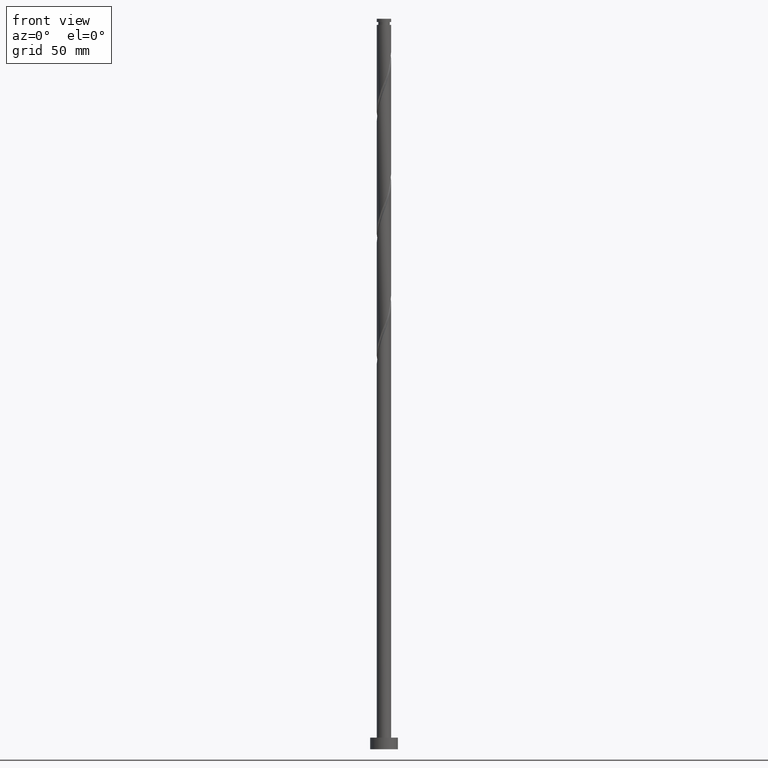
[diagram: clean part render]
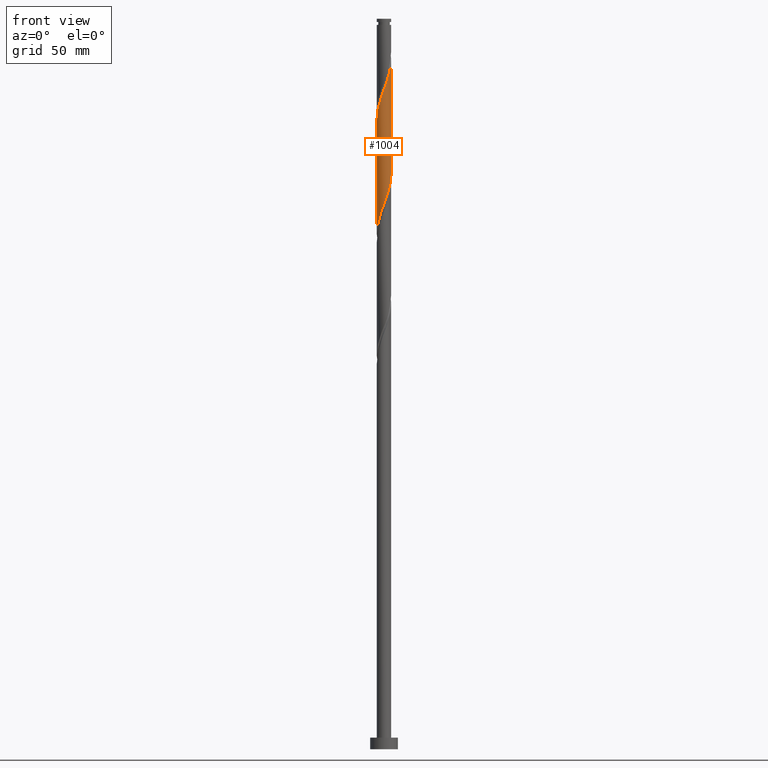
[diagram: same view with one face highlighted and labeled with its STEP entity id]
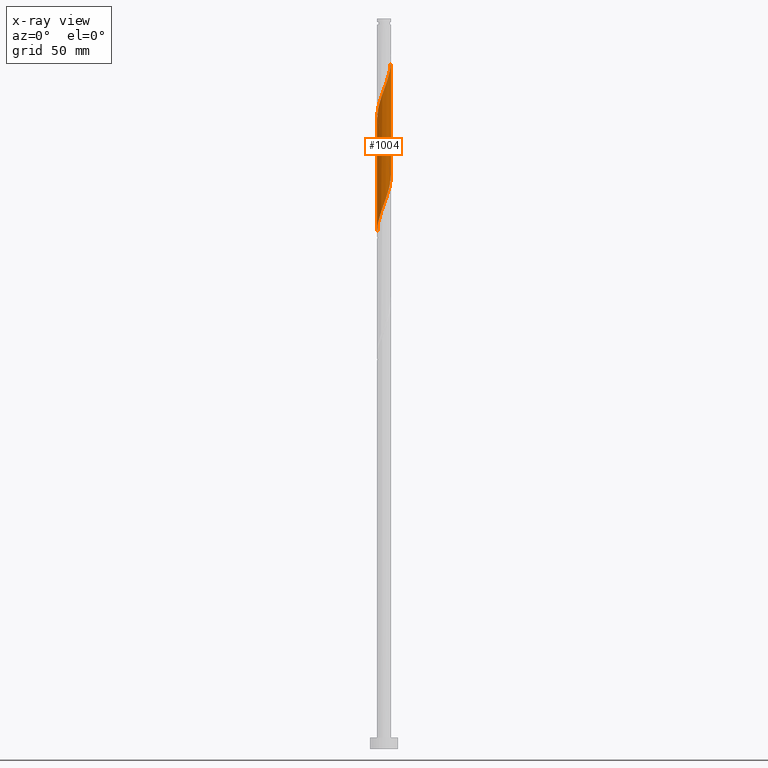
[diagram: x-ray of the same camera — body ghosted, the highlighted face saturated]
A machine part, front view. The second image highlights one B-rep face of the part: STEP entity #1004.
The next image is the same camera in x-ray: the body ghosted, the highlighted face saturated — about 0% of this face is hidden behind the body in this view.
In plain terms, the highlighted cylindrical surface (edge-blend (fillet) strip) has radius 3.1 mm, axis along (-0, -0, -1).
Its self-contained STEP definition (entity closure, byte-faithful):
#2 = CARTESIAN_POINT ( 'NONE',  ( -2.376467769900718174, -1.990578041329479575, 227.9893247266693095 ) ) ;
#10 = CARTESIAN_POINT ( 'NONE',  ( -3.090697797288131099, -0.4237781436733092932, 223.3018247266693095 ) ) ;
#65 =( BOUNDED_CURVE ( )  B_SPLINE_CURVE ( 2, ( #926, #486, #349, #1631, #1198, #1524, #1534, #777, #1391, #493, #1005, #290, #1497, #707, #580, #717, #1476, #1918, #1340, #692, #1332, #1177, #2, #1190, #887, #1486, #1312, #10, #570, #1783, #1037 ),
 .UNSPECIFIED., .F., .T. ) 
 B_SPLINE_CURVE_WITH_KNOTS ( ( 3, 2, 2, 2, 2, 2, 2, 2, 2, 2, 2, 2, 2, 2, 2, 3 ),
 ( 0.5545303401299220836, 0.5625000000000000000, 0.5714285714285713969, 0.5803571428571429047, 0.5892857142857143016, 0.5982142857142856984, 0.6071428571428570953, 0.6160714285714286031, 0.6250000000000000000, 0.6339285714285713969, 0.6428571428571429047, 0.6517857142857143016, 0.6607142857142856984, 0.6696428571428570953, 0.6785714285714286031, 0.6795303401299221946 ),
 .UNSPECIFIED. ) 
 CURVE ( )  GEOMETRIC_REPRESENTATION_ITEM ( )  RATIONAL_B_SPLINE_CURVE ( ( 0.9079949616362121834, 0.9039886423360753431, 0.9090909090909421453, 0.9033747362666170178, 0.9090909090909421453, 0.9033747362666170178, 0.9090909090909421453, 0.9033747362666170178, 0.9090909090909421453, 0.9033747362666170178, 0.9090909090909421453, 0.9033747362666170178, 0.9090909090909421453, 0.9033747362666170178, 0.9090909090909421453, 0.9033747362666170178, 0.9090909090909421453, 0.9033747362666170178, 0.9090909090909421453, 0.9033747362666170178, 0.9090909090909421453, 0.9033747362666170178, 0.9090909090909421453, 0.9033747362666170178, 0.9090909090909421453, 0.9033747362666170178, 0.9090909090909421453, 0.9033747362666170178, 0.9090909090909421453, 0.9084770030214838199, 0.9079949616362121834 ) ) 
 REPRESENTATION_ITEM ( '' )  );
#81 = CARTESIAN_POINT ( 'NONE',  ( -1.722814431116908906, -2.600752049917918196, 279.5518247266693379 ) ) ;
#92 = CARTESIAN_POINT ( 'NONE',  ( 2.918908042374625200, -1.100898101268990015, 294.5518247266693379 ) ) ;
#127 = ORIENTED_EDGE ( 'NONE', *, *, #1506, .F. ) ;
#135 = CARTESIAN_POINT ( 'NONE',  ( 1.277444032676697150, -2.824559566264928545, 287.9893247266693379 ) ) ;
#200 = CARTESIAN_POINT ( 'NONE',  ( -1.990578041329483794, -2.376467769900719951, 278.6143247266693379 ) ) ;
#233 = DIRECTION ( 'NONE',  ( -0.000000000000000000, -0.000000000000000000, -1.000000000000000000 ) ) ;
#248 = CARTESIAN_POINT ( 'NONE',  ( -0.4237781436733111806, -3.090697797288135540, 283.3018247266692811 ) ) ;
#290 = CARTESIAN_POINT ( 'NONE',  ( 1.100898101268986906, -2.918908042374620759, 238.3018247266693379 ) ) ;
#295 = EDGE_CURVE ( 'NONE', #783, #1638, #1091, .T. ) ;
#339 = CARTESIAN_POINT ( 'NONE',  ( -2.469483921543724758, -1.873939476407135318, 276.7393247266692242 ) ) ;
#346 = CARTESIAN_POINT ( 'NONE',  ( -3.100000000000000089, 0.000000000000000000, 315.0000000000000000 ) ) ;
#349 = CARTESIAN_POINT ( 'NONE',  ( 3.037999999999998924, -0.6168922110061074715, 246.7393247266692811 ) ) ;
#372 = CARTESIAN_POINT ( 'NONE',  ( 2.376467769900719951, -1.990578041329483794, 291.7393247266692242 ) ) ;
#486 = CARTESIAN_POINT ( 'NONE',  ( 3.099999999999998757, -0.3115617227303590364, 247.5755707256117546 ) ) ;
#493 = CARTESIAN_POINT ( 'NONE',  ( 1.722814431116905576, -2.600752049917915087, 240.1768247266692526 ) ) ;
#536 = CARTESIAN_POINT ( 'NONE',  ( 3.099102428151838673, -0.07459316204187098343, 297.3643247266692811 ) ) ;
#570 = CARTESIAN_POINT ( 'NONE',  ( -3.099102428151832900, -0.07459316204186967891, 222.3643247266692526 ) ) ;
#576 = CARTESIAN_POINT ( 'NONE',  ( -3.100000000000003642, 2.787388205144964281E-15, 271.3148076487632352 ) ) ;
#580 = CARTESIAN_POINT ( 'NONE',  ( 0.07459316204186954014, -3.099102428151832900, 235.4893247266692526 ) ) ;
#615 = ORIENTED_EDGE ( 'NONE', *, *, #1033, .F. ) ;
#631 =( BOUNDED_CURVE ( )  B_SPLINE_CURVE ( 2, ( #1040, #1763, #1478, #740, #1800, #1467, #339, #915, #200, #81, #1441, #960, #1566, #248, #1883, #1258, #835, #978, #135, #822, #1431, #842, #372, #1139, #1422, #92, #1861, #1107, #536, #1870, #1717 ),
 .UNSPECIFIED., .F., .T. ) 
 B_SPLINE_CURVE_WITH_KNOTS ( ( 3, 2, 2, 2, 2, 2, 2, 2, 2, 2, 2, 2, 2, 2, 2, 3 ),
 ( 0.5545303401299223056, 0.5625000000000000000, 0.5714285714285713969, 0.5803571428571427937, 0.5892857142857143016, 0.5982142857142856984, 0.6071428571428572063, 0.6160714285714286031, 0.6250000000000000000, 0.6339285714285713969, 0.6428571428571427937, 0.6517857142857143016, 0.6607142857142856984, 0.6696428571428572063, 0.6785714285714286031, 0.6795303401299221946 ),
 .UNSPECIFIED. ) 
 CURVE ( )  GEOMETRIC_REPRESENTATION_ITEM ( )  RATIONAL_B_SPLINE_CURVE ( ( 0.9079949616362180675, 0.9039886423360814494, 0.9090909090909482515, 0.9033747362666230130, 0.9090909090909482515, 0.9033747362666230130, 0.9090909090909482515, 0.9033747362666230130, 0.9090909090909482515, 0.9033747362666230130, 0.9090909090909482515, 0.9033747362666230130, 0.9090909090909482515, 0.9033747362666230130, 0.9090909090909482515, 0.9033747362666230130, 0.9090909090909482515, 0.9033747362666230130, 0.9090909090909482515, 0.9033747362666230130, 0.9090909090909482515, 0.9033747362666230130, 0.9090909090909482515, 0.9033747362666230130, 0.9090909090909482515, 0.9033747362666230130, 0.9090909090909482515, 0.9033747362666230130, 0.9090909090909482515, 0.9084770030214899261, 0.9079949616362181786 ) ) 
 REPRESENTATION_ITEM ( '' )  );
#656 = DIRECTION ( 'NONE',  ( -1.000000000000000000, 0.000000000000000000, 0.000000000000000000 ) ) ;
#692 = CARTESIAN_POINT ( 'NONE',  ( -1.595695462930748265, -2.680626191545387282, 230.8018247266693379 ) ) ;
#707 = CARTESIAN_POINT ( 'NONE',  ( 0.4237781436733092932, -3.090697797288130655, 236.4268247266693379 ) ) ;
#717 = CARTESIAN_POINT ( 'NONE',  ( -0.2745918195895704073, -3.107507059015536033, 234.5518247266692811 ) ) ;
#740 = CARTESIAN_POINT ( 'NONE',  ( -2.968492940984465811, -0.9591926024226451464, 273.9268247266692242 ) ) ;
#769 = VERTEX_POINT ( 'NONE', #1735 ) ;
#777 = CARTESIAN_POINT ( 'NONE',  ( 2.258341651542053796, -2.152183489883519929, 242.0518247266693379 ) ) ;
#783 = VERTEX_POINT ( 'NONE', #576 ) ;
#791 = VECTOR ( 'NONE', #233, 1000.000000000000000 ) ;
#814 = FACE_OUTER_BOUND ( 'NONE', #1888, .T. ) ;
#818 = CARTESIAN_POINT ( 'NONE',  ( -3.099999999999999645, 1.140329097044587659E-14, 222.1638418045752701 ) ) ;
#822 = CARTESIAN_POINT ( 'NONE',  ( 1.595695462930749153, -2.680626191545392167, 288.9268247266692242 ) ) ;
#835 = CARTESIAN_POINT ( 'NONE',  ( 0.6168922110061071384, -3.038000000000003364, 286.1143247266692242 ) ) ;
#842 = CARTESIAN_POINT ( 'NONE',  ( 2.152183489883522594, -2.258341651542058681, 290.8018247266693947 ) ) ;
#887 = CARTESIAN_POINT ( 'NONE',  ( -2.759830046146267701, -1.411856266192946130, 226.1143247266693095 ) ) ;
#915 = CARTESIAN_POINT ( 'NONE',  ( -2.258341651542058681, -2.152183489883522594, 277.6768247266694516 ) ) ;
#926 = CARTESIAN_POINT ( 'NONE',  ( 3.099999999999999645, -3.097098005716648322E-15, 248.4138418045752985 ) ) ;
#951 = VECTOR ( 'NONE', #1438, 1000.000000000000000 ) ;
#960 = CARTESIAN_POINT ( 'NONE',  ( -1.100898101268990015, -2.918908042374625200, 281.4268247266692811 ) ) ;
#978 = CARTESIAN_POINT ( 'NONE',  ( 0.9591926024226449243, -2.968492940984465811, 287.0518247266692811 ) ) ;
#1004 = ADVANCED_FACE ( 'NONE', ( #814 ), #1425, .T. ) ;
#1005 = CARTESIAN_POINT ( 'NONE',  ( 1.411856266192945908, -2.759830046146267701, 239.2393247266692811 ) ) ;
#1033 = EDGE_CURVE ( 'NONE', #783, #769, #631, .T. ) ;
#1037 = CARTESIAN_POINT ( 'NONE',  ( -3.099999999999999645, 1.140329097044587659E-14, 222.1638418045752417 ) ) ;
#1040 = CARTESIAN_POINT ( 'NONE',  ( -3.100000000000003642, 2.787388205144964281E-15, 271.3148076487632352 ) ) ;
#1091 = LINE ( 'NONE', #346, #791 ) ;
#1107 = CARTESIAN_POINT ( 'NONE',  ( 3.090697797288134652, -0.4237781436733112916, 296.4268247266692811 ) ) ;
#1139 = CARTESIAN_POINT ( 'NONE',  ( 2.600752049917918196, -1.722814431116909129, 292.6768247266693379 ) ) ;
#1145 = AXIS2_PLACEMENT_3D ( 'NONE', #1445, #1292, #656 ) ;
#1177 = CARTESIAN_POINT ( 'NONE',  ( -2.152183489883519929, -2.258341651542053796, 228.9268247266693095 ) ) ;
#1190 = CARTESIAN_POINT ( 'NONE',  ( -2.600752049917915087, -1.722814431116905576, 227.0518247266692526 ) ) ;
#1198 = CARTESIAN_POINT ( 'NONE',  ( 2.824559566264924992, -1.277444032676696484, 244.8643247266693095 ) ) ;
#1258 = CARTESIAN_POINT ( 'NONE',  ( 0.2745918195895695191, -3.107507059015540918, 285.1768247266693379 ) ) ;
#1271 = CARTESIAN_POINT ( 'NONE',  ( 3.100000000000000089, 3.796405077356794918E-16, 315.0000000000000000 ) ) ;
#1292 = DIRECTION ( 'NONE',  ( -0.000000000000000000, -0.000000000000000000, -1.000000000000000000 ) ) ;
#1312 = CARTESIAN_POINT ( 'NONE',  ( -3.004802919831374819, -0.7623381224711482940, 224.2393247266692811 ) ) ;
#1332 = CARTESIAN_POINT ( 'NONE',  ( -1.873939476407133764, -2.469483921543719873, 229.8643247266693095 ) ) ;
#1340 = CARTESIAN_POINT ( 'NONE',  ( -1.277444032676696040, -2.824559566264924992, 231.7393247266693095 ) ) ;
#1391 = CARTESIAN_POINT ( 'NONE',  ( 1.990578041329479131, -2.376467769900718174, 241.1143247266693095 ) ) ;
#1419 = LINE ( 'NONE', #1271, #951 ) ;
#1422 = CARTESIAN_POINT ( 'NONE',  ( 2.759830046146270810, -1.411856266192949461, 293.6143247266692242 ) ) ;
#1425 = CYLINDRICAL_SURFACE ( 'NONE', #1145, 3.100000000000000089 ) ;
#1431 = CARTESIAN_POINT ( 'NONE',  ( 1.873939476407135318, -2.469483921543724758, 289.8643247266692242 ) ) ;
#1438 = DIRECTION ( 'NONE',  ( -0.000000000000000000, -0.000000000000000000, -1.000000000000000000 ) ) ;
#1441 = CARTESIAN_POINT ( 'NONE',  ( -1.411856266192948794, -2.759830046146270366, 280.4893247266692811 ) ) ;
#1445 = CARTESIAN_POINT ( 'NONE',  ( 0.000000000000000000, 0.000000000000000000, 315.0000000000000000 ) ) ;
#1467 = CARTESIAN_POINT ( 'NONE',  ( -2.680626191545391723, -1.595695462930749153, 275.8018247266692811 ) ) ;
#1476 = CARTESIAN_POINT ( 'NONE',  ( -0.6168922110061072495, -3.037999999999998924, 233.6143247266692242 ) ) ;
#1478 = CARTESIAN_POINT ( 'NONE',  ( -3.038000000000003364, -0.6168922110061072495, 272.9893247266692811 ) ) ;
#1479 = ORIENTED_EDGE ( 'NONE', *, *, #1915, .F. ) ;
#1486 = CARTESIAN_POINT ( 'NONE',  ( -2.918908042374620759, -1.100898101268986906, 225.1768247266692811 ) ) ;
#1497 = CARTESIAN_POINT ( 'NONE',  ( 0.7623381224711479609, -3.004802919831374819, 237.3643247266692526 ) ) ;
#1506 = EDGE_CURVE ( 'NONE', #769, #1785, #1419, .T. ) ;
#1524 = CARTESIAN_POINT ( 'NONE',  ( 2.680626191545386838, -1.595695462930748043, 243.9268247266692811 ) ) ;
#1534 = CARTESIAN_POINT ( 'NONE',  ( 2.469483921543719873, -1.873939476407134430, 242.9893247266692811 ) ) ;
#1566 = CARTESIAN_POINT ( 'NONE',  ( -0.7623381224711502924, -3.004802919831379704, 282.3643247266691674 ) ) ;
#1609 = CARTESIAN_POINT ( 'NONE',  ( 3.099999999999999201, -3.097098005716648322E-15, 248.4138418045753269 ) ) ;
#1631 = CARTESIAN_POINT ( 'NONE',  ( 2.968492940984461370, -0.9591926024226447023, 245.8018247266693379 ) ) ;
#1638 = VERTEX_POINT ( 'NONE', #818 ) ;
#1717 = CARTESIAN_POINT ( 'NONE',  ( 3.100000000000004086, 1.093312910451773224E-15, 297.5648076487631215 ) ) ;
#1735 = CARTESIAN_POINT ( 'NONE',  ( 3.100000000000004086, 1.093312910451773224E-15, 297.5648076487631783 ) ) ;
#1763 = CARTESIAN_POINT ( 'NONE',  ( -3.100000000000001421, -0.3115617227303668635, 272.1530787277268360 ) ) ;
#1783 = CARTESIAN_POINT ( 'NONE',  ( -3.099999999999999201, -0.03730198121580335230, 222.2642044928004168 ) ) ;
#1785 = VERTEX_POINT ( 'NONE', #1609 ) ;
#1800 = CARTESIAN_POINT ( 'NONE',  ( -2.824559566264928545, -1.277444032676697150, 274.8643247266693379 ) ) ;
#1861 = CARTESIAN_POINT ( 'NONE',  ( 3.004802919831379704, -0.7623381224711505144, 295.4893247266692242 ) ) ;
#1870 = CARTESIAN_POINT ( 'NONE',  ( 3.100000000000004086, -0.03730198121580462212, 297.4644449605381737 ) ) ;
#1883 = CARTESIAN_POINT ( 'NONE',  ( -0.07459316204187071975, -3.099102428151837785, 284.2393247266691674 ) ) ;
#1888 = EDGE_LOOP ( 'NONE', ( #127, #615, #1906, #1479 ) ) ;
#1906 = ORIENTED_EDGE ( 'NONE', *, *, #295, .T. ) ;
#1915 = EDGE_CURVE ( 'NONE', #1785, #1638, #65, .T. ) ;
#1918 = CARTESIAN_POINT ( 'NONE',  ( -0.9591926024226445913, -2.968492940984461370, 232.6768247266693095 ) ) ;